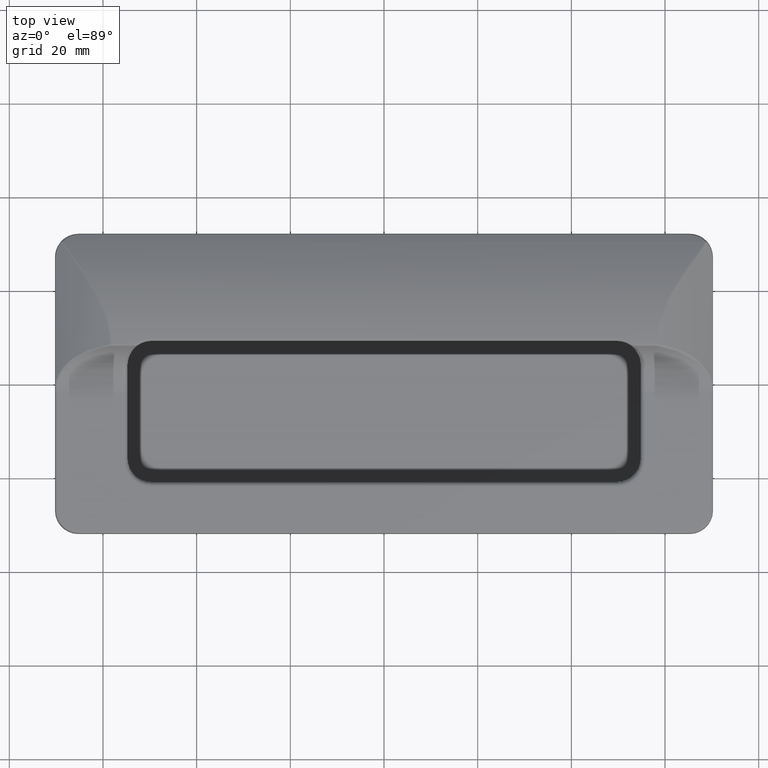
[diagram: clean part render]
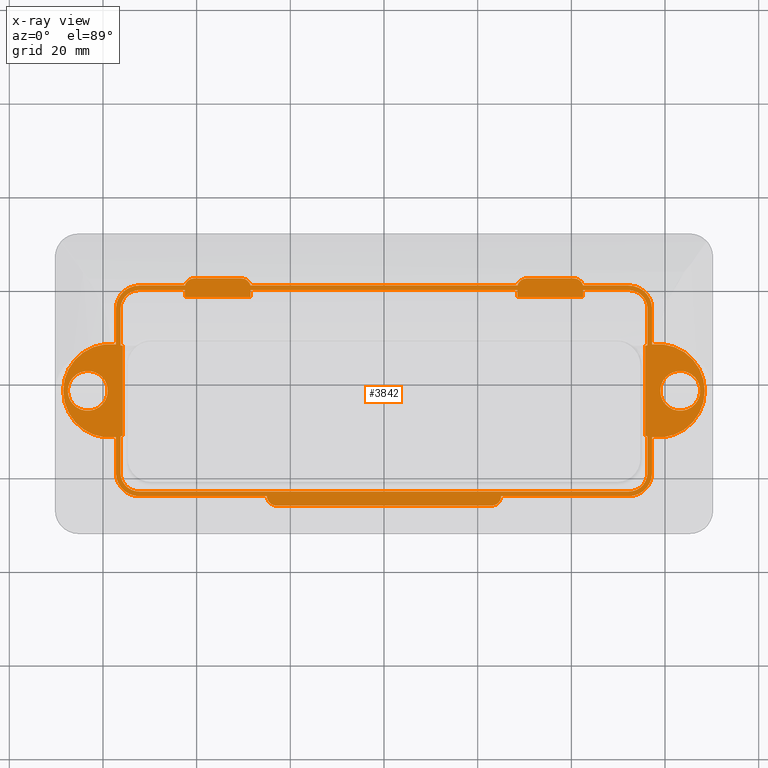
[diagram: x-ray — body ghosted, one internal face saturated and labeled with its STEP entity id]
A machine part, top view, then the same camera in x-ray: the body is ghosted and one INTERNAL B-rep face — a face not visible from any outside direction — is saturated and labeled: STEP entity #3842.
In plain terms, the highlighted planar face has unit normal (0, 0, -1).
Its self-contained STEP definition (entity closure, byte-faithful):
#51=FACE_BOUND('',#1227,.T.);
#52=FACE_BOUND('',#1228,.T.);
#53=FACE_BOUND('',#1229,.T.);
#279=LINE('',#7790,#565);
#285=LINE('',#7811,#571);
#290=LINE('',#7822,#576);
#295=LINE('',#7834,#581);
#328=LINE('',#8226,#614);
#331=LINE('',#8234,#617);
#334=LINE('',#8242,#620);
#337=LINE('',#8250,#623);
#340=LINE('',#8258,#626);
#343=LINE('',#8266,#629);
#357=LINE('',#8329,#643);
#358=LINE('',#8333,#644);
#359=LINE('',#8337,#645);
#360=LINE('',#8341,#646);
#361=LINE('',#8345,#647);
#362=LINE('',#8348,#648);
#363=LINE('',#8353,#649);
#364=LINE('',#8357,#650);
#365=LINE('',#8361,#651);
#366=LINE('',#8365,#652);
#367=LINE('',#8369,#653);
#368=LINE('',#8372,#654);
#369=LINE('',#8374,#655);
#370=LINE('',#8375,#656);
#371=LINE('',#8377,#657);
#372=LINE('',#8379,#658);
#373=LINE('',#8383,#659);
#374=LINE('',#8387,#660);
#565=VECTOR('',#4820,14.);
#571=VECTOR('',#4840,1.50000000000001);
#576=VECTOR('',#4849,14.);
#581=VECTOR('',#4860,1.50000000000001);
#614=VECTOR('',#5029,27.25);
#617=VECTOR('',#5038,46.);
#620=VECTOR('',#5047,27.2500000000001);
#623=VECTOR('',#5056,7.57846184961669);
#626=VECTOR('',#5065,7.57847535460549);
#629=VECTOR('',#5074,9.75000000000007);
#643=VECTOR('',#5150,10.1270166537926);
#644=VECTOR('',#5153,56.9999999999999);
#645=VECTOR('',#5156,10.1270166537926);
#646=VECTOR('',#5159,9.75000000000001);
#647=VECTOR('',#5162,7.57847535460551);
#648=VECTOR('',#5165,7.5784618496167);
#649=VECTOR('',#5168,7.7564716270594);
#650=VECTOR('',#5171,104.5);
#651=VECTOR('',#5174,7.75647162705941);
#652=VECTOR('',#5177,19.2288845230294);
#653=VECTOR('',#5180,7.75648513204823);
#654=VECTOR('',#5183,9.75000000000001);
#655=VECTOR('',#5184,56.9999999999999);
#656=VECTOR('',#5185,1.5);
#657=VECTOR('',#5186,1.49999999999999);
#658=VECTOR('',#5187,9.75000000000009);
#659=VECTOR('',#5190,7.7564851320482);
#660=VECTOR('',#5193,19.2288845230294);
#778=PLANE('',#4216);
#987=FACE_OUTER_BOUND('',#1226,.T.);
#1226=EDGE_LOOP('',(#3348,#3349,#3350,#3351,#3352,#3353,#3354,#3355,#3356,
#3357,#3358,#3359,#3360,#3361,#3362,#3363,#3364,#3365,#3366,#3367,#3368,
#3369,#3370,#3371));
#1227=EDGE_LOOP('',(#3372));
#1228=EDGE_LOOP('',(#3373,#3374,#3375,#3376,#3377,#3378,#3379,#3380,#3381,
#3382,#3383,#3384,#3385,#3386,#3387,#3388,#3389,#3390,#3391,#3392,#3393,
#3394,#3395,#3396));
#1229=EDGE_LOOP('',(#3397));
#1432=CIRCLE('',#4170,5.00000000000002);
#1433=CIRCLE('',#4173,2.);
#1434=CIRCLE('',#4176,2.);
#1435=CIRCLE('',#4179,5.);
#1436=CIRCLE('',#4182,10.);
#1437=CIRCLE('',#4185,5.);
#1454=CIRCLE('',#4217,2.);
#1455=CIRCLE('',#4218,2.);
#1456=CIRCLE('',#4219,2.);
#1457=CIRCLE('',#4220,2.);
#1458=CIRCLE('',#4221,5.00000000000001);
#1459=CIRCLE('',#4222,10.);
#1460=CIRCLE('',#4223,4.25);
#1461=CIRCLE('',#4224,4.);
#1462=CIRCLE('',#4225,4.00000000000002);
#1463=CIRCLE('',#4226,10.);
#1464=CIRCLE('',#4227,10.);
#1465=CIRCLE('',#4228,4.00000000000001);
#1466=CIRCLE('',#4229,4.);
#1467=CIRCLE('',#4230,10.);
#1468=CIRCLE('',#4231,10.);
#1469=CIRCLE('',#4232,4.25);
#1758=VERTEX_POINT('',#7787);
#1759=VERTEX_POINT('',#7789);
#1766=VERTEX_POINT('',#7808);
#1767=VERTEX_POINT('',#7810);
#1771=VERTEX_POINT('',#7820);
#1775=VERTEX_POINT('',#7832);
#1826=VERTEX_POINT('',#8218);
#1827=VERTEX_POINT('',#8220);
#1828=VERTEX_POINT('',#8224);
#1829=VERTEX_POINT('',#8228);
#1830=VERTEX_POINT('',#8232);
#1831=VERTEX_POINT('',#8236);
#1832=VERTEX_POINT('',#8240);
#1833=VERTEX_POINT('',#8244);
#1834=VERTEX_POINT('',#8248);
#1835=VERTEX_POINT('',#8252);
#1836=VERTEX_POINT('',#8256);
#1837=VERTEX_POINT('',#8260);
#1838=VERTEX_POINT('',#8264);
#1855=VERTEX_POINT('',#8326);
#1856=VERTEX_POINT('',#8328);
#1857=VERTEX_POINT('',#8330);
#1858=VERTEX_POINT('',#8332);
#1859=VERTEX_POINT('',#8334);
#1860=VERTEX_POINT('',#8336);
#1861=VERTEX_POINT('',#8338);
#1862=VERTEX_POINT('',#8340);
#1863=VERTEX_POINT('',#8342);
#1864=VERTEX_POINT('',#8344);
#1865=VERTEX_POINT('',#8346);
#1866=VERTEX_POINT('',#8349);
#1867=VERTEX_POINT('',#8351);
#1868=VERTEX_POINT('',#8352);
#1869=VERTEX_POINT('',#8354);
#1870=VERTEX_POINT('',#8356);
#1871=VERTEX_POINT('',#8358);
#1872=VERTEX_POINT('',#8360);
#1873=VERTEX_POINT('',#8362);
#1874=VERTEX_POINT('',#8364);
#1875=VERTEX_POINT('',#8366);
#1876=VERTEX_POINT('',#8368);
#1877=VERTEX_POINT('',#8370);
#1878=VERTEX_POINT('',#8373);
#1879=VERTEX_POINT('',#8376);
#1880=VERTEX_POINT('',#8378);
#1881=VERTEX_POINT('',#8380);
#1882=VERTEX_POINT('',#8382);
#1883=VERTEX_POINT('',#8384);
#1884=VERTEX_POINT('',#8386);
#1885=VERTEX_POINT('',#8389);
#2221=EDGE_CURVE('',#1758,#1759,#279,.T.);
#2231=EDGE_CURVE('',#1767,#1766,#285,.T.);
#2237=EDGE_CURVE('',#1766,#1771,#290,.T.);
#2243=EDGE_CURVE('',#1771,#1775,#295,.T.);
#2326=EDGE_CURVE('',#1827,#1826,#1432,.T.);
#2329=EDGE_CURVE('',#1826,#1828,#328,.T.);
#2331=EDGE_CURVE('',#1829,#1828,#1433,.T.);
#2333=EDGE_CURVE('',#1829,#1830,#331,.T.);
#2335=EDGE_CURVE('',#1831,#1830,#1434,.T.);
#2337=EDGE_CURVE('',#1831,#1832,#334,.T.);
#2339=EDGE_CURVE('',#1832,#1833,#1435,.T.);
#2341=EDGE_CURVE('',#1833,#1834,#337,.T.);
#2343=EDGE_CURVE('',#1834,#1835,#1436,.T.);
#2345=EDGE_CURVE('',#1835,#1836,#340,.T.);
#2347=EDGE_CURVE('',#1836,#1837,#1437,.T.);
#2349=EDGE_CURVE('',#1837,#1838,#343,.T.);
#2379=EDGE_CURVE('',#1855,#1838,#1454,.T.);
#2380=EDGE_CURVE('',#1856,#1855,#357,.T.);
#2381=EDGE_CURVE('',#1857,#1856,#1455,.T.);
#2382=EDGE_CURVE('',#1857,#1858,#358,.T.);
#2383=EDGE_CURVE('',#1859,#1858,#1456,.T.);
#2384=EDGE_CURVE('',#1859,#1860,#359,.T.);
#2385=EDGE_CURVE('',#1861,#1860,#1457,.T.);
#2386=EDGE_CURVE('',#1861,#1862,#360,.T.);
#2387=EDGE_CURVE('',#1862,#1863,#1458,.T.);
#2388=EDGE_CURVE('',#1863,#1864,#361,.T.);
#2389=EDGE_CURVE('',#1865,#1864,#1459,.T.);
#2390=EDGE_CURVE('',#1865,#1827,#362,.T.);
#2391=EDGE_CURVE('',#1866,#1866,#1460,.T.);
#2392=EDGE_CURVE('',#1867,#1868,#363,.T.);
#2393=EDGE_CURVE('',#1868,#1869,#1461,.T.);
#2394=EDGE_CURVE('',#1869,#1870,#364,.T.);
#2395=EDGE_CURVE('',#1870,#1871,#1462,.T.);
#2396=EDGE_CURVE('',#1871,#1872,#365,.T.);
#2397=EDGE_CURVE('',#1873,#1872,#1463,.T.);
#2398=EDGE_CURVE('',#1874,#1873,#366,.T.);
#2399=EDGE_CURVE('',#1875,#1874,#1464,.T.);
#2400=EDGE_CURVE('',#1875,#1876,#367,.T.);
#2401=EDGE_CURVE('',#1876,#1877,#1465,.T.);
#2402=EDGE_CURVE('',#1877,#1767,#368,.T.);
#2403=EDGE_CURVE('',#1775,#1878,#369,.T.);
#2404=EDGE_CURVE('',#1759,#1878,#370,.T.);
#2405=EDGE_CURVE('',#1879,#1758,#371,.T.);
#2406=EDGE_CURVE('',#1879,#1880,#372,.T.);
#2407=EDGE_CURVE('',#1880,#1881,#1466,.T.);
#2408=EDGE_CURVE('',#1881,#1882,#373,.T.);
#2409=EDGE_CURVE('',#1882,#1883,#1467,.T.);
#2410=EDGE_CURVE('',#1883,#1884,#374,.T.);
#2411=EDGE_CURVE('',#1884,#1867,#1468,.T.);
#2412=EDGE_CURVE('',#1885,#1885,#1469,.T.);
#3348=ORIENTED_EDGE('',*,*,#2331,.F.);
#3349=ORIENTED_EDGE('',*,*,#2333,.T.);
#3350=ORIENTED_EDGE('',*,*,#2335,.F.);
#3351=ORIENTED_EDGE('',*,*,#2337,.T.);
#3352=ORIENTED_EDGE('',*,*,#2339,.T.);
#3353=ORIENTED_EDGE('',*,*,#2341,.T.);
#3354=ORIENTED_EDGE('',*,*,#2343,.T.);
#3355=ORIENTED_EDGE('',*,*,#2345,.T.);
#3356=ORIENTED_EDGE('',*,*,#2347,.T.);
#3357=ORIENTED_EDGE('',*,*,#2349,.T.);
#3358=ORIENTED_EDGE('',*,*,#2379,.F.);
#3359=ORIENTED_EDGE('',*,*,#2380,.F.);
#3360=ORIENTED_EDGE('',*,*,#2381,.F.);
#3361=ORIENTED_EDGE('',*,*,#2382,.T.);
#3362=ORIENTED_EDGE('',*,*,#2383,.F.);
#3363=ORIENTED_EDGE('',*,*,#2384,.T.);
#3364=ORIENTED_EDGE('',*,*,#2385,.F.);
#3365=ORIENTED_EDGE('',*,*,#2386,.T.);
#3366=ORIENTED_EDGE('',*,*,#2387,.T.);
#3367=ORIENTED_EDGE('',*,*,#2388,.T.);
#3368=ORIENTED_EDGE('',*,*,#2389,.F.);
#3369=ORIENTED_EDGE('',*,*,#2390,.T.);
#3370=ORIENTED_EDGE('',*,*,#2326,.T.);
#3371=ORIENTED_EDGE('',*,*,#2329,.T.);
#3372=ORIENTED_EDGE('',*,*,#2391,.T.);
#3373=ORIENTED_EDGE('',*,*,#2392,.T.);
#3374=ORIENTED_EDGE('',*,*,#2393,.T.);
#3375=ORIENTED_EDGE('',*,*,#2394,.T.);
#3376=ORIENTED_EDGE('',*,*,#2395,.T.);
#3377=ORIENTED_EDGE('',*,*,#2396,.T.);
#3378=ORIENTED_EDGE('',*,*,#2397,.F.);
#3379=ORIENTED_EDGE('',*,*,#2398,.F.);
#3380=ORIENTED_EDGE('',*,*,#2399,.F.);
#3381=ORIENTED_EDGE('',*,*,#2400,.T.);
#3382=ORIENTED_EDGE('',*,*,#2401,.T.);
#3383=ORIENTED_EDGE('',*,*,#2402,.T.);
#3384=ORIENTED_EDGE('',*,*,#2231,.T.);
#3385=ORIENTED_EDGE('',*,*,#2237,.T.);
#3386=ORIENTED_EDGE('',*,*,#2243,.T.);
#3387=ORIENTED_EDGE('',*,*,#2403,.T.);
#3388=ORIENTED_EDGE('',*,*,#2404,.F.);
#3389=ORIENTED_EDGE('',*,*,#2221,.F.);
#3390=ORIENTED_EDGE('',*,*,#2405,.F.);
#3391=ORIENTED_EDGE('',*,*,#2406,.T.);
#3392=ORIENTED_EDGE('',*,*,#2407,.T.);
#3393=ORIENTED_EDGE('',*,*,#2408,.T.);
#3394=ORIENTED_EDGE('',*,*,#2409,.T.);
#3395=ORIENTED_EDGE('',*,*,#2410,.T.);
#3396=ORIENTED_EDGE('',*,*,#2411,.T.);
#3397=ORIENTED_EDGE('',*,*,#2412,.F.);
#3842=ADVANCED_FACE('',(#987,#51,#52,#53),#778,.F.);
#4170=AXIS2_PLACEMENT_3D('',#8221,#5023,#5024);
#4173=AXIS2_PLACEMENT_3D('',#8230,#5033,#5034);
#4176=AXIS2_PLACEMENT_3D('',#8238,#5042,#5043);
#4179=AXIS2_PLACEMENT_3D('',#8246,#5051,#5052);
#4182=AXIS2_PLACEMENT_3D('',#8254,#5060,#5061);
#4185=AXIS2_PLACEMENT_3D('',#8262,#5069,#5070);
#4216=AXIS2_PLACEMENT_3D('',#8325,#5146,#5147);
#4217=AXIS2_PLACEMENT_3D('',#8327,#5148,#5149);
#4218=AXIS2_PLACEMENT_3D('',#8331,#5151,#5152);
#4219=AXIS2_PLACEMENT_3D('',#8335,#5154,#5155);
#4220=AXIS2_PLACEMENT_3D('',#8339,#5157,#5158);
#4221=AXIS2_PLACEMENT_3D('',#8343,#5160,#5161);
#4222=AXIS2_PLACEMENT_3D('',#8347,#5163,#5164);
#4223=AXIS2_PLACEMENT_3D('',#8350,#5166,#5167);
#4224=AXIS2_PLACEMENT_3D('',#8355,#5169,#5170);
#4225=AXIS2_PLACEMENT_3D('',#8359,#5172,#5173);
#4226=AXIS2_PLACEMENT_3D('',#8363,#5175,#5176);
#4227=AXIS2_PLACEMENT_3D('',#8367,#5178,#5179);
#4228=AXIS2_PLACEMENT_3D('',#8371,#5181,#5182);
#4229=AXIS2_PLACEMENT_3D('',#8381,#5188,#5189);
#4230=AXIS2_PLACEMENT_3D('',#8385,#5191,#5192);
#4231=AXIS2_PLACEMENT_3D('',#8388,#5194,#5195);
#4232=AXIS2_PLACEMENT_3D('',#8390,#5196,#5197);
#4820=DIRECTION('',(-1.,-2.85094902409834E-48,1.54074395550979E-32));
#4840=DIRECTION('',(-4.44089209850062E-15,-1.,-1.85037170770859E-16));
#4849=DIRECTION('',(1.,-2.85094902409834E-48,1.54074395550979E-32));
#4860=DIRECTION('',(4.44089209850062E-15,1.,1.85037170770859E-16));
#5023=DIRECTION('center_axis',(0.,-1.85037170770859E-16,1.));
#5024=DIRECTION('ref_axis',(0.,1.,1.85037170770859E-16));
#5029=DIRECTION('',(1.,0.,0.));
#5033=DIRECTION('center_axis',(1.54074395550979E-32,1.85037170770859E-16,
-1.));
#5034=DIRECTION('ref_axis',(-0.707106781186548,-0.707106781186548,0.));
#5038=DIRECTION('',(1.,1.77635683940025E-16,4.82766439393067E-32));
#5042=DIRECTION('center_axis',(1.54074395550979E-32,1.85037170770859E-16,
-1.));
#5043=DIRECTION('ref_axis',(0.707106781186548,-0.707106781186548,0.));
#5047=DIRECTION('',(1.,0.,0.));
#5051=DIRECTION('center_axis',(0.,-1.85037170770859E-16,1.));
#5052=DIRECTION('ref_axis',(-1.,2.22044604925031E-16,4.1086505480261E-32));
#5056=DIRECTION('',(2.53765262771464E-16,1.,1.85037170770859E-16));
#5060=DIRECTION('center_axis',(1.84889274661175E-32,-1.85037170770859E-16,
1.));
#5061=DIRECTION('ref_axis',(0.274999999999999,-0.961444226151471,-1.77902919461046E-16));
#5065=DIRECTION('',(2.53765262771464E-16,1.,1.85037170770859E-16));
#5069=DIRECTION('center_axis',(0.,-1.85037170770859E-16,1.));
#5070=DIRECTION('ref_axis',(0.,-1.,-1.85037170770859E-16));
#5074=DIRECTION('',(-1.,2.54979450631615E-16,4.7180676149582E-32));
#5146=DIRECTION('center_axis',(1.54074395550979E-32,1.85037170770859E-16,
-1.));
#5147=DIRECTION('ref_axis',(-1.,0.,0.));
#5148=DIRECTION('center_axis',(1.54074395550979E-32,1.85037170770859E-16,
-1.));
#5149=DIRECTION('ref_axis',(0.968245836551855,0.249999999999997,0.));
#5150=DIRECTION('',(1.,2.85094902409834E-48,-1.54074395550979E-32));
#5151=DIRECTION('center_axis',(1.54074395550979E-32,1.85037170770859E-16,
-1.));
#5152=DIRECTION('ref_axis',(-0.968245836551855,0.249999999999997,0.));
#5153=DIRECTION('',(-1.,2.54979450631615E-16,4.7180676149582E-32));
#5154=DIRECTION('center_axis',(1.54074395550979E-32,1.85037170770859E-16,
-1.));
#5155=DIRECTION('ref_axis',(0.968245836551853,0.250000000000006,0.));
#5156=DIRECTION('',(-1.,2.85094902409834E-48,-1.54074395550979E-32));
#5157=DIRECTION('center_axis',(1.54074395550979E-32,1.85037170770859E-16,
-1.));
#5158=DIRECTION('ref_axis',(-0.968245836551853,0.250000000000006,0.));
#5159=DIRECTION('',(-1.,2.54979450631615E-16,4.7180676149582E-32));
#5160=DIRECTION('center_axis',(0.,-1.85037170770859E-16,1.));
#5161=DIRECTION('ref_axis',(1.,0.,0.));
#5162=DIRECTION('',(0.,-1.,-1.85037170770859E-16));
#5163=DIRECTION('center_axis',(1.84889274661175E-32,1.85037170770859E-16,
-1.));
#5164=DIRECTION('ref_axis',(-0.274999999999999,-0.961444226151471,-1.77902919461046E-16));
#5165=DIRECTION('',(0.,-1.,-1.85037170770859E-16));
#5166=DIRECTION('center_axis',(8.79327861094055E-33,1.85037170770859E-16,
-1.));
#5167=DIRECTION('ref_axis',(-1.,-3.57480197487428E-64,0.));
#5168=DIRECTION('',(-2.53765262771464E-16,-1.,-1.85037170770859E-16));
#5169=DIRECTION('center_axis',(1.54074395550979E-32,1.85037170770859E-16,
-1.));
#5170=DIRECTION('ref_axis',(-1.,2.22044604925031E-16,0.));
#5171=DIRECTION('',(-1.,0.,-1.54074395550979E-32));
#5172=DIRECTION('center_axis',(1.54074395550979E-32,1.85037170770859E-16,
-1.));
#5173=DIRECTION('ref_axis',(0.,1.,0.));
#5174=DIRECTION('',(0.,1.,1.85037170770859E-16));
#5175=DIRECTION('center_axis',(1.84889274661175E-32,1.85037170770859E-16,
-1.));
#5176=DIRECTION('ref_axis',(-0.274999999999999,-0.961444226151471,-1.77902919461046E-16));
#5177=DIRECTION('',(0.,-1.,-1.85037170770859E-16));
#5178=DIRECTION('center_axis',(1.84889274661175E-32,1.85037170770859E-16,
-1.));
#5179=DIRECTION('ref_axis',(-0.274999999999999,-0.961444226151471,-1.77902919461046E-16));
#5180=DIRECTION('',(0.,1.,1.85037170770859E-16));
#5181=DIRECTION('center_axis',(1.54074395550979E-32,1.85037170770859E-16,
-1.));
#5182=DIRECTION('ref_axis',(1.,0.,0.));
#5183=DIRECTION('',(1.,-2.54979450631615E-16,-3.17732365944841E-32));
#5184=DIRECTION('',(1.,-2.54979450631615E-16,-3.17732365944841E-32));
#5185=DIRECTION('',(-4.44089209850062E-15,1.,1.85037170770859E-16));
#5186=DIRECTION('',(4.44089209850062E-15,-1.,-1.85037170770859E-16));
#5187=DIRECTION('',(1.,-2.54979450631615E-16,-3.17732365944841E-32));
#5188=DIRECTION('center_axis',(1.54074395550979E-32,1.85037170770859E-16,
-1.));
#5189=DIRECTION('ref_axis',(0.,-1.,0.));
#5190=DIRECTION('',(-2.53765262771464E-16,-1.,-1.85037170770859E-16));
#5191=DIRECTION('center_axis',(1.84889274661175E-32,-1.85037170770859E-16,
1.));
#5192=DIRECTION('ref_axis',(0.274999999999999,-0.961444226151471,-1.77902919461046E-16));
#5193=DIRECTION('',(0.,-1.,-1.85037170770859E-16));
#5194=DIRECTION('center_axis',(1.84889274661175E-32,-1.85037170770859E-16,
1.));
#5195=DIRECTION('ref_axis',(0.274999999999999,-0.961444226151471,-1.77902919461046E-16));
#5196=DIRECTION('center_axis',(8.79327861094055E-33,-1.85037170770859E-16,
1.));
#5197=DIRECTION('ref_axis',(1.,-3.57480197487428E-64,0.));
#7787=CARTESIAN_POINT('',(42.5,18.5,3.50000000000001));
#7789=CARTESIAN_POINT('',(28.5,18.5,3.50000000000001));
#7790=CARTESIAN_POINT('',(42.5,18.5,3.50000000000001));
#7808=CARTESIAN_POINT('',(-42.5,18.5,3.50000000000001));
#7810=CARTESIAN_POINT('',(-42.5,20.,3.50000000000001));
#7811=CARTESIAN_POINT('',(-42.5,22.5,3.50000000000001));
#7820=CARTESIAN_POINT('',(-28.5,18.5,3.50000000000001));
#7822=CARTESIAN_POINT('',(-42.5,18.5,3.50000000000001));
#7832=CARTESIAN_POINT('',(-28.5,20.,3.50000000000001));
#7834=CARTESIAN_POINT('',(-28.5,18.5,3.50000000000001));
#8218=CARTESIAN_POINT('',(-52.25,-24.,3.5));
#8220=CARTESIAN_POINT('',(-57.25,-19.,3.5));
#8221=CARTESIAN_POINT('Origin',(-52.25,-19.,3.5));
#8224=CARTESIAN_POINT('',(-25.,-24.,3.5));
#8226=CARTESIAN_POINT('',(-52.25,-24.,3.5));
#8228=CARTESIAN_POINT('',(-23.,-26.,3.5));
#8230=CARTESIAN_POINT('Origin',(-23.,-24.,3.50000000000001));
#8232=CARTESIAN_POINT('',(23.,-26.,3.5));
#8234=CARTESIAN_POINT('',(-25.,-26.,3.5));
#8236=CARTESIAN_POINT('',(25.,-24.,3.5));
#8238=CARTESIAN_POINT('Origin',(23.,-24.,3.50000000000001));
#8240=CARTESIAN_POINT('',(52.25,-24.,3.5));
#8242=CARTESIAN_POINT('',(-52.25,-24.,3.5));
#8244=CARTESIAN_POINT('',(57.25,-19.,3.5));
#8246=CARTESIAN_POINT('Origin',(52.25,-19.,3.5));
#8248=CARTESIAN_POINT('',(57.25,-11.4215381503833,3.50000000000001));
#8250=CARTESIAN_POINT('',(57.25,-19.,3.5));
#8252=CARTESIAN_POINT('',(57.25,8.42152464539451,3.50000000000001));
#8254=CARTESIAN_POINT('Origin',(58.5002858555965,-1.50000675249439,3.50000000000001));
#8256=CARTESIAN_POINT('',(57.25,16.,3.50000000000001));
#8258=CARTESIAN_POINT('',(57.25,-19.,3.5));
#8260=CARTESIAN_POINT('',(52.25,21.,3.50000000000001));
#8262=CARTESIAN_POINT('Origin',(52.25,16.,3.50000000000001));
#8264=CARTESIAN_POINT('',(42.5,21.,3.50000000000001));
#8266=CARTESIAN_POINT('',(52.2500000000001,21.,3.50000000000001));
#8325=CARTESIAN_POINT('Origin',(1.78333197237587E-14,-1.49999999999999,
3.50000000000001));
#8326=CARTESIAN_POINT('',(40.5635083268963,22.5,3.50000000000001));
#8327=CARTESIAN_POINT('Origin',(40.5635083268963,20.5,3.50000000000001));
#8328=CARTESIAN_POINT('',(30.4364916731037,22.5,3.50000000000001));
#8329=CARTESIAN_POINT('',(28.5,22.5,3.50000000000001));
#8330=CARTESIAN_POINT('',(28.5,21.,3.50000000000001));
#8331=CARTESIAN_POINT('Origin',(30.4364916731037,20.5,3.50000000000001));
#8332=CARTESIAN_POINT('',(-28.5,21.,3.50000000000001));
#8333=CARTESIAN_POINT('',(52.2500000000001,21.,3.50000000000001));
#8334=CARTESIAN_POINT('',(-30.4364916731037,22.5,3.50000000000001));
#8335=CARTESIAN_POINT('Origin',(-30.4364916731037,20.5,3.50000000000001));
#8336=CARTESIAN_POINT('',(-40.5635083268963,22.5,3.50000000000001));
#8337=CARTESIAN_POINT('',(-28.5,22.5,3.50000000000001));
#8338=CARTESIAN_POINT('',(-42.5,21.,3.50000000000001));
#8339=CARTESIAN_POINT('Origin',(-40.5635083268963,20.5,3.50000000000001));
#8340=CARTESIAN_POINT('',(-52.25,21.,3.50000000000001));
#8341=CARTESIAN_POINT('',(52.2500000000001,21.,3.50000000000001));
#8342=CARTESIAN_POINT('',(-57.25,16.,3.50000000000001));
#8343=CARTESIAN_POINT('Origin',(-52.25,16.,3.50000000000001));
#8344=CARTESIAN_POINT('',(-57.25,8.4215246453945,3.50000000000001));
#8345=CARTESIAN_POINT('',(-57.25,16.,3.50000000000001));
#8346=CARTESIAN_POINT('',(-57.25,-11.4215381503833,3.50000000000001));
#8347=CARTESIAN_POINT('Origin',(-58.5002858555965,-1.50000675249439,3.50000000000001));
#8348=CARTESIAN_POINT('',(-57.25,16.,3.50000000000001));
#8349=CARTESIAN_POINT('',(-59.0002858555965,-1.5000067524944,3.50000000000001));
#8350=CARTESIAN_POINT('Origin',(-63.2502858555965,-1.5000067524944,3.50000000000001));
#8351=CARTESIAN_POINT('',(56.25,-11.2435283729406,3.50000000000001));
#8352=CARTESIAN_POINT('',(56.25,-19.,3.5));
#8353=CARTESIAN_POINT('',(56.25,7.25,3.50000000000001));
#8354=CARTESIAN_POINT('',(52.25,-23.,3.5));
#8355=CARTESIAN_POINT('Origin',(52.25,-19.,3.50000000000001));
#8356=CARTESIAN_POINT('',(-52.25,-23.,3.5));
#8357=CARTESIAN_POINT('',(26.125,-23.,3.5));
#8358=CARTESIAN_POINT('',(-56.25,-19.,3.5));
#8359=CARTESIAN_POINT('Origin',(-52.25,-19.,3.50000000000001));
#8360=CARTESIAN_POINT('',(-56.25,-11.2435283729406,3.50000000000001));
#8361=CARTESIAN_POINT('',(-56.25,-10.25,3.50000000000001));
#8362=CARTESIAN_POINT('',(-55.7502858555965,-11.1144490140091,3.50000000000001));
#8363=CARTESIAN_POINT('Origin',(-58.5002858555965,-1.50000675249439,3.50000000000001));
#8364=CARTESIAN_POINT('',(-55.7502858555965,8.11443550902031,3.50000000000001));
#8365=CARTESIAN_POINT('',(-55.7502858555965,8.11443550902031,3.50000000000001));
#8366=CARTESIAN_POINT('',(-56.25,8.24351486795178,3.50000000000001));
#8367=CARTESIAN_POINT('Origin',(-58.5002858555965,-1.50000675249439,3.50000000000001));
#8368=CARTESIAN_POINT('',(-56.25,16.,3.50000000000001));
#8369=CARTESIAN_POINT('',(-56.25,-10.25,3.50000000000001));
#8370=CARTESIAN_POINT('',(-52.25,20.,3.50000000000001));
#8371=CARTESIAN_POINT('Origin',(-52.25,16.,3.50000000000001));
#8372=CARTESIAN_POINT('',(-26.125,20.,3.50000000000001));
#8373=CARTESIAN_POINT('',(28.5,20.,3.50000000000001));
#8374=CARTESIAN_POINT('',(-26.125,20.,3.50000000000001));
#8375=CARTESIAN_POINT('',(28.5,18.5,3.50000000000001));
#8376=CARTESIAN_POINT('',(42.5,20.,3.50000000000001));
#8377=CARTESIAN_POINT('',(42.5,22.5,3.50000000000001));
#8378=CARTESIAN_POINT('',(52.25,20.,3.50000000000001));
#8379=CARTESIAN_POINT('',(-26.125,20.,3.50000000000001));
#8380=CARTESIAN_POINT('',(56.25,16.,3.50000000000001));
#8381=CARTESIAN_POINT('Origin',(52.25,16.,3.50000000000001));
#8382=CARTESIAN_POINT('',(56.25,8.2435148679518,3.50000000000001));
#8383=CARTESIAN_POINT('',(56.25,7.25,3.50000000000001));
#8384=CARTESIAN_POINT('',(55.7502858555965,8.11443550902031,3.50000000000001));
#8385=CARTESIAN_POINT('Origin',(58.5002858555965,-1.50000675249439,3.50000000000001));
#8386=CARTESIAN_POINT('',(55.7502858555965,-11.1144490140091,3.50000000000001));
#8387=CARTESIAN_POINT('',(55.7502858555965,8.11443550902031,3.50000000000001));
#8388=CARTESIAN_POINT('Origin',(58.5002858555965,-1.50000675249439,3.50000000000001));
#8389=CARTESIAN_POINT('',(59.0002858555965,-1.5000067524944,3.50000000000001));
#8390=CARTESIAN_POINT('Origin',(63.2502858555965,-1.5000067524944,3.50000000000001));